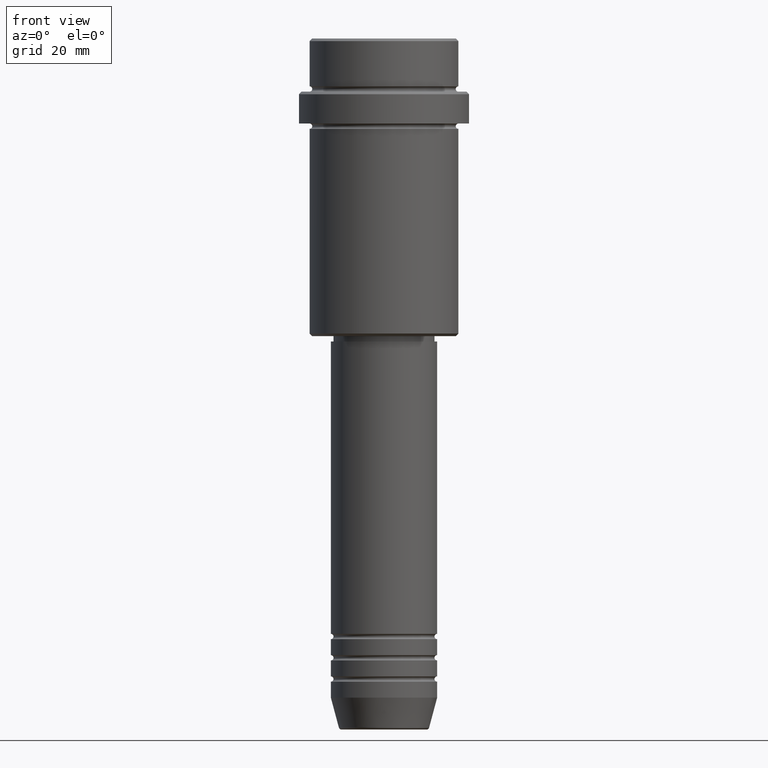
[diagram: clean part render]
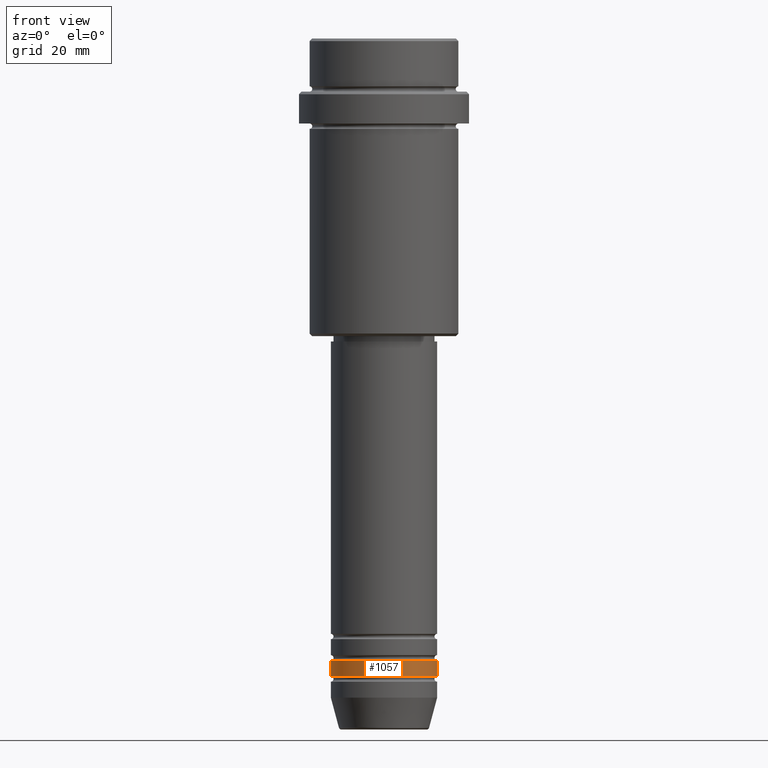
[diagram: same view with one face highlighted and labeled with its STEP entity id]
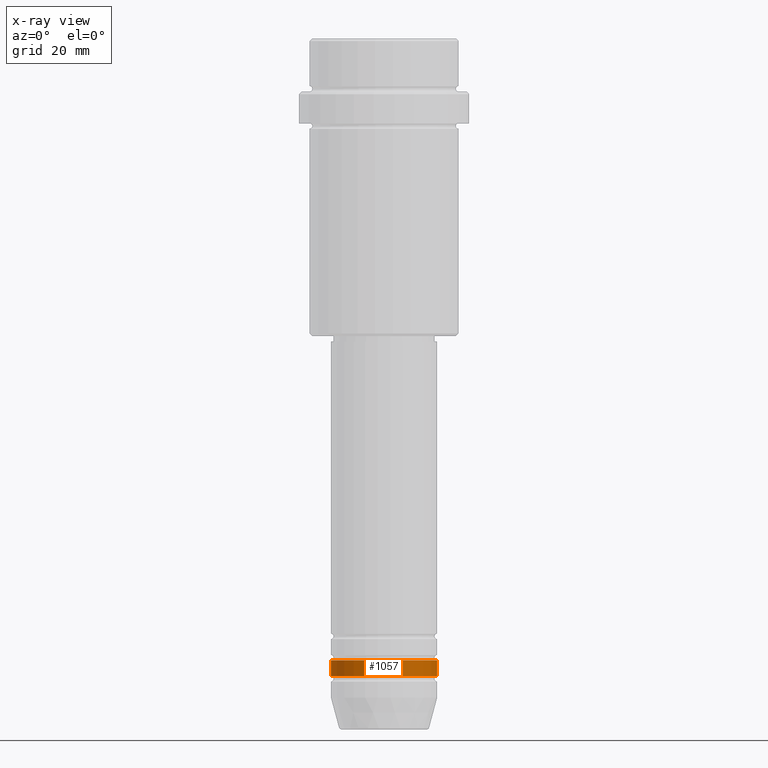
[diagram: x-ray of the same camera — body ghosted, the highlighted face saturated]
A machine part, front view. The second image highlights one B-rep face of the part: STEP entity #1057.
The next image is the same camera in x-ray: the body ghosted, the highlighted face saturated — about 0% of this face is hidden behind the body in this view.
In plain terms, the highlighted cylindrical surface (partial cylindrical patch) has radius 10 mm, axis along (-0, -0, 1).
Its self-contained STEP definition (entity closure, byte-faithful):
#7 = EDGE_CURVE ( 'NONE', #278, #347, #642, .T. ) ;
#33 = DIRECTION ( 'NONE',  ( 1.000000000000000000, 0.000000000000000000, 0.000000000000000000 ) ) ;
#35 = VECTOR ( 'NONE', #851, 1000.000000000000000 ) ;
#37 = AXIS2_PLACEMENT_3D ( 'NONE', #547, #774, #1088 ) ;
#94 = CARTESIAN_POINT ( 'NONE',  ( -10.00000000000000000, 1.224646799147353256E-15, -119.9999999999998863 ) ) ;
#243 = EDGE_LOOP ( 'NONE', ( #575, #1380, #1124, #910 ) ) ;
#245 = CARTESIAN_POINT ( 'NONE',  ( 0.000000000000000000, 0.000000000000000000, -116.9999999999998863 ) ) ;
#278 = VERTEX_POINT ( 'NONE', #94 ) ;
#343 = EDGE_CURVE ( 'NONE', #347, #1121, #400, .T. ) ;
#346 = CARTESIAN_POINT ( 'NONE',  ( -10.00000000000000000, 1.224646799147353256E-15, -116.9999999999998863 ) ) ;
#347 = VERTEX_POINT ( 'NONE', #346 ) ;
#352 = FACE_OUTER_BOUND ( 'NONE', #243, .T. ) ;
#400 = CIRCLE ( 'NONE', #571, 10.00000000000000000 ) ;
#405 = CIRCLE ( 'NONE', #37, 10.00000000000000000 ) ;
#414 = DIRECTION ( 'NONE',  ( -0.000000000000000000, -0.000000000000000000, 1.000000000000000000 ) ) ;
#539 = EDGE_CURVE ( 'NONE', #1355, #1121, #816, .T. ) ;
#547 = CARTESIAN_POINT ( 'NONE',  ( 0.000000000000000000, 0.000000000000000000, -119.9999999999998863 ) ) ;
#552 = CARTESIAN_POINT ( 'NONE',  ( 10.00000000000000000, 0.000000000000000000, -119.9999999999998863 ) ) ;
#563 = DIRECTION ( 'NONE',  ( -0.000000000000000000, -0.000000000000000000, 1.000000000000000000 ) ) ;
#571 = AXIS2_PLACEMENT_3D ( 'NONE', #245, #1216, #1335 ) ;
#575 = ORIENTED_EDGE ( 'NONE', *, *, #7, .F. ) ;
#642 = LINE ( 'NONE', #1060, #35 ) ;
#678 = CYLINDRICAL_SURFACE ( 'NONE', #1397, 10.00000000000000000 ) ;
#774 = DIRECTION ( 'NONE',  ( -0.000000000000000000, -0.000000000000000000, 1.000000000000000000 ) ) ;
#816 = LINE ( 'NONE', #959, #1233 ) ;
#851 = DIRECTION ( 'NONE',  ( -0.000000000000000000, -0.000000000000000000, 1.000000000000000000 ) ) ;
#886 = CARTESIAN_POINT ( 'NONE',  ( 0.000000000000000000, 0.000000000000000000, 0.000000000000000000 ) ) ;
#910 = ORIENTED_EDGE ( 'NONE', *, *, #343, .F. ) ;
#959 = CARTESIAN_POINT ( 'NONE',  ( 10.00000000000000000, 0.000000000000000000, 0.000000000000000000 ) ) ;
#1057 = ADVANCED_FACE ( 'NONE', ( #352 ), #678, .T. ) ;
#1060 = CARTESIAN_POINT ( 'NONE',  ( -10.00000000000000000, 1.224646799147353256E-15, 0.000000000000000000 ) ) ;
#1088 = DIRECTION ( 'NONE',  ( 1.000000000000000000, 0.000000000000000000, 0.000000000000000000 ) ) ;
#1121 = VERTEX_POINT ( 'NONE', #1260 ) ;
#1124 = ORIENTED_EDGE ( 'NONE', *, *, #539, .T. ) ;
#1216 = DIRECTION ( 'NONE',  ( -0.000000000000000000, -0.000000000000000000, 1.000000000000000000 ) ) ;
#1233 = VECTOR ( 'NONE', #414, 1000.000000000000000 ) ;
#1260 = CARTESIAN_POINT ( 'NONE',  ( 10.00000000000000000, 0.000000000000000000, -116.9999999999998863 ) ) ;
#1335 = DIRECTION ( 'NONE',  ( 1.000000000000000000, 0.000000000000000000, 0.000000000000000000 ) ) ;
#1355 = VERTEX_POINT ( 'NONE', #552 ) ;
#1380 = ORIENTED_EDGE ( 'NONE', *, *, #1382, .T. ) ;
#1382 = EDGE_CURVE ( 'NONE', #278, #1355, #405, .T. ) ;
#1397 = AXIS2_PLACEMENT_3D ( 'NONE', #886, #563, #33 ) ;